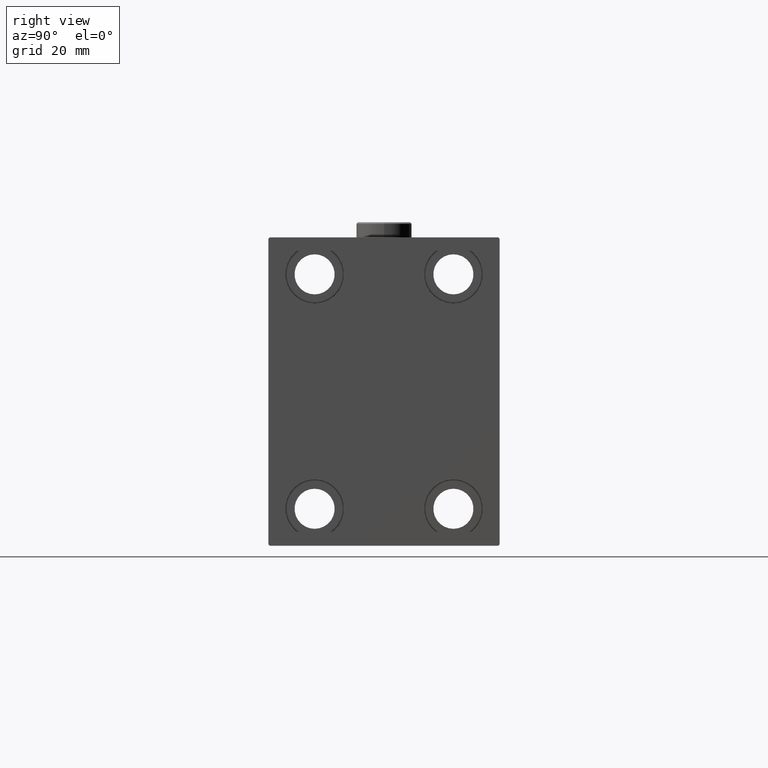
[diagram: clean part render]
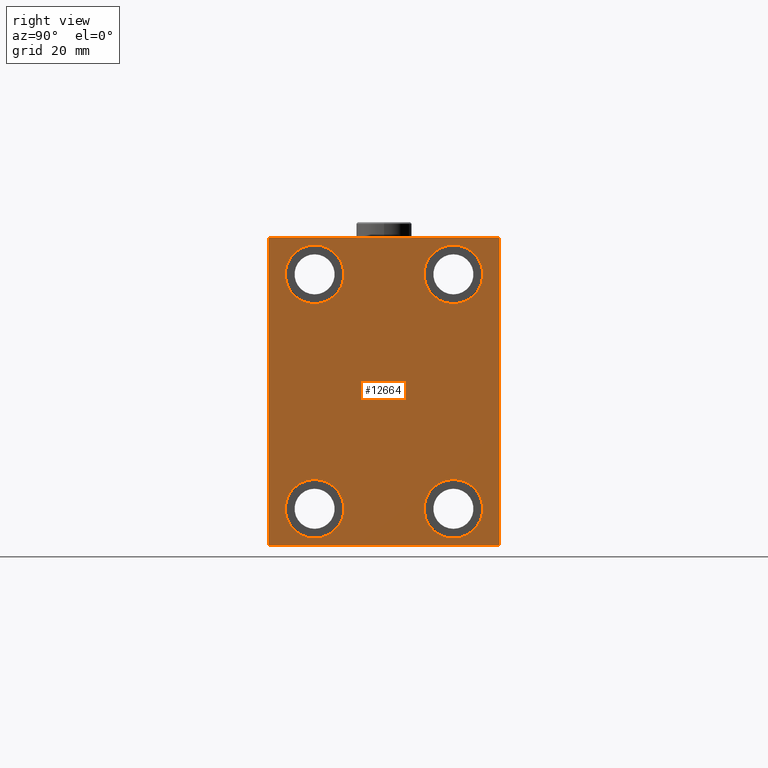
[diagram: same view with one face highlighted and labeled with its STEP entity id]
A machine part, right view. The second image highlights one B-rep face of the part: STEP entity #12664.
In plain terms, the highlighted planar face has unit normal (1, 0, 0).
Its self-contained STEP definition (entity closure, byte-faithful):
#219 = AXIS2_PLACEMENT_3D ( 'NONE', #31456, #23439, #9053 ) ;
#543 = VERTEX_POINT ( 'NONE', #39768 ) ;
#587 = VERTEX_POINT ( 'NONE', #40006 ) ;
#655 = ORIENTED_EDGE ( 'NONE', *, *, #15362, .T. ) ;
#1846 = AXIS2_PLACEMENT_3D ( 'NONE', #44374, #6631, #33176 ) ;
#2304 = CARTESIAN_POINT ( 'NONE',  ( 103.0000000000000000, 22.49999999999999645, -37.99999999999999289 ) ) ;
#2745 = EDGE_LOOP ( 'NONE', ( #3932, #655 ) ) ;
#2961 = ORIENTED_EDGE ( 'NONE', *, *, #3072, .T. ) ;
#3025 = CIRCLE ( 'NONE', #7699, 9.500000000000001776 ) ;
#3072 = EDGE_CURVE ( 'NONE', #38106, #587, #22753, .T. ) ;
#3309 = CARTESIAN_POINT ( 'NONE',  ( 103.0000000000000000, 37.49999999999999289, 50.00000000000000711 ) ) ;
#3721 = VERTEX_POINT ( 'NONE', #45018 ) ;
#3932 = ORIENTED_EDGE ( 'NONE', *, *, #27045, .T. ) ;
#4189 = CARTESIAN_POINT ( 'NONE',  ( 103.0000000000000000, 0.000000000000000000, 0.000000000000000000 ) ) ;
#4266 = LINE ( 'NONE', #33967, #12609 ) ;
#4326 = DIRECTION ( 'NONE',  ( -1.000000000000000000, -0.000000000000000000, -0.000000000000000000 ) ) ;
#4901 = DIRECTION ( 'NONE',  ( 0.000000000000000000, 0.000000000000000000, -1.000000000000000000 ) ) ;
#4987 = CIRCLE ( 'NONE', #32189, 9.500000000000001776 ) ;
#5269 = AXIS2_PLACEMENT_3D ( 'NONE', #4189, #23173, #4901 ) ;
#5785 = EDGE_CURVE ( 'NONE', #543, #20526, #35347, .T. ) ;
#5947 = CARTESIAN_POINT ( 'NONE',  ( 103.0000000000000000, -22.50000000000000711, -28.49999999999998934 ) ) ;
#6631 = DIRECTION ( 'NONE',  ( -1.000000000000000000, -0.000000000000000000, -0.000000000000000000 ) ) ;
#7001 = AXIS2_PLACEMENT_3D ( 'NONE', #15046, #4326, #33305 ) ;
#7158 = DIRECTION ( 'NONE',  ( -0.000000000000000000, 0.7071067811865573427, 0.7071067811865378028 ) ) ;
#7350 = CARTESIAN_POINT ( 'NONE',  ( 103.0000000000000000, 22.50000000000000355, 28.49999999999998934 ) ) ;
#7385 = EDGE_CURVE ( 'NONE', #32996, #543, #36673, .T. ) ;
#7699 = AXIS2_PLACEMENT_3D ( 'NONE', #2304, #35670, #17160 ) ;
#7831 = PLANE ( 'NONE',  #5269 ) ;
#7849 = LINE ( 'NONE', #31449, #30538 ) ;
#7988 = EDGE_CURVE ( 'NONE', #19955, #3721, #39423, .T. ) ;
#8151 = DIRECTION ( 'NONE',  ( 0.000000000000000000, 0.000000000000000000, -1.000000000000000000 ) ) ;
#8611 = ORIENTED_EDGE ( 'NONE', *, *, #44909, .T. ) ;
#9053 = DIRECTION ( 'NONE',  ( 0.000000000000000000, 0.000000000000000000, 1.000000000000000000 ) ) ;
#10467 = VERTEX_POINT ( 'NONE', #29848 ) ;
#10587 = ORIENTED_EDGE ( 'NONE', *, *, #28332, .T. ) ;
#10767 = DIRECTION ( 'NONE',  ( 0.000000000000000000, 0.000000000000000000, 1.000000000000000000 ) ) ;
#10853 = DIRECTION ( 'NONE',  ( 0.000000000000000000, -1.000000000000000000, -1.850371707708594316E-16 ) ) ;
#11553 = ORIENTED_EDGE ( 'NONE', *, *, #32073, .T. ) ;
#11705 = CIRCLE ( 'NONE', #7001, 9.500000000000001776 ) ;
#11887 = AXIS2_PLACEMENT_3D ( 'NONE', #25040, #47447, #14081 ) ;
#12505 = VERTEX_POINT ( 'NONE', #7350 ) ;
#12609 = VECTOR ( 'NONE', #8151, 1000.000000000000000 ) ;
#12664 = ADVANCED_FACE ( 'NONE', ( #45809, #16102, #30707, #37542, #26821 ), #7831, .T. ) ;
#13237 = VERTEX_POINT ( 'NONE', #14058 ) ;
#13928 = ORIENTED_EDGE ( 'NONE', *, *, #44499, .T. ) ;
#14045 = VERTEX_POINT ( 'NONE', #40560 ) ;
#14058 = CARTESIAN_POINT ( 'NONE',  ( 103.0000000000000000, 22.49999999999999645, -47.49999999999999289 ) ) ;
#14081 = DIRECTION ( 'NONE',  ( 0.000000000000000000, 0.000000000000000000, 1.000000000000000000 ) ) ;
#14193 = CARTESIAN_POINT ( 'NONE',  ( 103.0000000000000000, -37.50000000000000711, -50.00000000000000711 ) ) ;
#14958 = VECTOR ( 'NONE', #30079, 1000.000000000000000 ) ;
#15046 = CARTESIAN_POINT ( 'NONE',  ( 103.0000000000000000, 22.50000000000000355, 37.99999999999999289 ) ) ;
#15229 = CARTESIAN_POINT ( 'NONE',  ( 103.0000000000000000, 37.50000000000000711, -50.00000000000000000 ) ) ;
#15362 = EDGE_CURVE ( 'NONE', #39567, #13237, #3025, .T. ) ;
#16102 = FACE_BOUND ( 'NONE', #26271, .T. ) ;
#16473 = ORIENTED_EDGE ( 'NONE', *, *, #42992, .T. ) ;
#16815 = DIRECTION ( 'NONE',  ( -1.000000000000000000, -0.000000000000000000, -0.000000000000000000 ) ) ;
#16833 = CARTESIAN_POINT ( 'NONE',  ( 103.0000000000000000, -43.49999999999998579, 43.49999999999998579 ) ) ;
#17160 = DIRECTION ( 'NONE',  ( 0.000000000000000000, 0.000000000000000000, 1.000000000000000000 ) ) ;
#17603 = LINE ( 'NONE', #14193, #33635 ) ;
#18040 = AXIS2_PLACEMENT_3D ( 'NONE', #43194, #31996, #31521 ) ;
#18294 = ORIENTED_EDGE ( 'NONE', *, *, #31151, .T. ) ;
#18556 = CARTESIAN_POINT ( 'NONE',  ( 103.0000000000000000, 37.00000000000000711, -50.00000000000000000 ) ) ;
#18563 = CARTESIAN_POINT ( 'NONE',  ( 103.0000000000000000, -22.50000000000000711, -37.99999999999999289 ) ) ;
#18697 = ORIENTED_EDGE ( 'NONE', *, *, #38880, .T. ) ;
#19955 = VERTEX_POINT ( 'NONE', #20352 ) ;
#20352 = CARTESIAN_POINT ( 'NONE',  ( 103.0000000000000000, -37.50000000000000711, -49.49999999999999289 ) ) ;
#20526 = VERTEX_POINT ( 'NONE', #43756 ) ;
#21409 = VECTOR ( 'NONE', #46548, 1000.000000000000114 ) ;
#21894 = DIRECTION ( 'NONE',  ( -0.000000000000000000, 0.7071067811865474617, -0.7071067811865474617 ) ) ;
#22049 = CIRCLE ( 'NONE', #1846, 9.500000000000001776 ) ;
#22753 = LINE ( 'NONE', #48076, #37000 ) ;
#23173 = DIRECTION ( 'NONE',  ( 1.000000000000000000, 0.000000000000000000, 0.000000000000000000 ) ) ;
#23412 = CARTESIAN_POINT ( 'NONE',  ( 103.0000000000000000, -22.50000000000000711, -37.99999999999999289 ) ) ;
#23439 = DIRECTION ( 'NONE',  ( -1.000000000000000000, -0.000000000000000000, -0.000000000000000000 ) ) ;
#24898 = VERTEX_POINT ( 'NONE', #32904 ) ;
#25040 = CARTESIAN_POINT ( 'NONE',  ( 103.0000000000000000, 22.50000000000000355, 37.99999999999999289 ) ) ;
#25972 = ORIENTED_EDGE ( 'NONE', *, *, #47669, .T. ) ;
#26068 = EDGE_CURVE ( 'NONE', #20526, #19955, #4266, .T. ) ;
#26271 = EDGE_LOOP ( 'NONE', ( #18294, #10587 ) ) ;
#26821 = FACE_OUTER_BOUND ( 'NONE', #33344, .T. ) ;
#26992 = EDGE_CURVE ( 'NONE', #587, #10467, #45898, .T. ) ;
#27032 = VERTEX_POINT ( 'NONE', #5947 ) ;
#27045 = EDGE_CURVE ( 'NONE', #13237, #39567, #35153, .T. ) ;
#28027 = DIRECTION ( 'NONE',  ( -0.000000000000000000, -0.7071067811865524577, 0.7071067811865426878 ) ) ;
#28332 = EDGE_CURVE ( 'NONE', #24898, #33694, #42212, .T. ) ;
#29043 = DIRECTION ( 'NONE',  ( 0.000000000000000000, 1.000000000000000000, 9.251858538542970348E-17 ) ) ;
#29695 = AXIS2_PLACEMENT_3D ( 'NONE', #23412, #16815, #46527 ) ;
#29848 = CARTESIAN_POINT ( 'NONE',  ( 103.0000000000000000, 37.49999999999999289, 49.50000000000000000 ) ) ;
#30079 = DIRECTION ( 'NONE',  ( 0.000000000000000000, -1.387778780781445676E-16, 1.000000000000000000 ) ) ;
#30408 = VERTEX_POINT ( 'NONE', #36978 ) ;
#30538 = VECTOR ( 'NONE', #28027, 1000.000000000000000 ) ;
#30707 = FACE_BOUND ( 'NONE', #47055, .T. ) ;
#31151 = EDGE_CURVE ( 'NONE', #33694, #24898, #22049, .T. ) ;
#31449 = CARTESIAN_POINT ( 'NONE',  ( 103.0000000000000000, 43.49999999999972999, 43.50000000000033396 ) ) ;
#31456 = CARTESIAN_POINT ( 'NONE',  ( 103.0000000000000000, -22.49999999999999645, 37.99999999999999289 ) ) ;
#31521 = DIRECTION ( 'NONE',  ( 0.000000000000000000, 0.000000000000000000, 1.000000000000000000 ) ) ;
#31996 = DIRECTION ( 'NONE',  ( -1.000000000000000000, -0.000000000000000000, -0.000000000000000000 ) ) ;
#32073 = EDGE_CURVE ( 'NONE', #30408, #27032, #4987, .T. ) ;
#32189 = AXIS2_PLACEMENT_3D ( 'NONE', #18563, #36596, #10767 ) ;
#32868 = CIRCLE ( 'NONE', #11887, 9.500000000000001776 ) ;
#32904 = CARTESIAN_POINT ( 'NONE',  ( 103.0000000000000000, -22.49999999999999645, 47.49999999999999289 ) ) ;
#32996 = VERTEX_POINT ( 'NONE', #33131 ) ;
#33130 = ORIENTED_EDGE ( 'NONE', *, *, #5785, .T. ) ;
#33131 = CARTESIAN_POINT ( 'NONE',  ( 103.0000000000000000, 36.99999999999997868, 50.00000000000000711 ) ) ;
#33176 = DIRECTION ( 'NONE',  ( 0.000000000000000000, 0.000000000000000000, 1.000000000000000000 ) ) ;
#33305 = DIRECTION ( 'NONE',  ( 0.000000000000000000, 0.000000000000000000, 1.000000000000000000 ) ) ;
#33344 = EDGE_LOOP ( 'NONE', ( #34261, #33130, #45393, #47383, #25972, #2961, #44330, #13928 ) ) ;
#33635 = VECTOR ( 'NONE', #29043, 1000.000000000000000 ) ;
#33694 = VERTEX_POINT ( 'NONE', #43959 ) ;
#33967 = CARTESIAN_POINT ( 'NONE',  ( 103.0000000000000000, -37.50000000000000711, 49.99999999999999289 ) ) ;
#34261 = ORIENTED_EDGE ( 'NONE', *, *, #7385, .T. ) ;
#35153 = CIRCLE ( 'NONE', #18040, 9.500000000000001776 ) ;
#35169 = CIRCLE ( 'NONE', #29695, 9.500000000000001776 ) ;
#35347 = LINE ( 'NONE', #16833, #21409 ) ;
#35670 = DIRECTION ( 'NONE',  ( -1.000000000000000000, -0.000000000000000000, -0.000000000000000000 ) ) ;
#36240 = VECTOR ( 'NONE', #21894, 1000.000000000000114 ) ;
#36596 = DIRECTION ( 'NONE',  ( -1.000000000000000000, -0.000000000000000000, -0.000000000000000000 ) ) ;
#36673 = LINE ( 'NONE', #3309, #44022 ) ;
#36978 = CARTESIAN_POINT ( 'NONE',  ( 103.0000000000000000, -22.50000000000000711, -47.49999999999999289 ) ) ;
#37000 = VECTOR ( 'NONE', #7158, 1000.000000000000000 ) ;
#37542 = FACE_BOUND ( 'NONE', #42940, .T. ) ;
#38106 = VERTEX_POINT ( 'NONE', #18556 ) ;
#38880 = EDGE_CURVE ( 'NONE', #12505, #14045, #11705, .T. ) ;
#39423 = LINE ( 'NONE', #40376, #36240 ) ;
#39567 = VERTEX_POINT ( 'NONE', #43015 ) ;
#39768 = CARTESIAN_POINT ( 'NONE',  ( 103.0000000000000000, -36.99999999999999289, 49.99999999999999289 ) ) ;
#40006 = CARTESIAN_POINT ( 'NONE',  ( 103.0000000000000000, 37.50000000000000711, -49.50000000000001421 ) ) ;
#40376 = CARTESIAN_POINT ( 'NONE',  ( 103.0000000000000000, -43.50000000000000000, -43.50000000000000000 ) ) ;
#40560 = CARTESIAN_POINT ( 'NONE',  ( 103.0000000000000000, 22.50000000000000355, 47.49999999999999289 ) ) ;
#42212 = CIRCLE ( 'NONE', #219, 9.500000000000001776 ) ;
#42940 = EDGE_LOOP ( 'NONE', ( #11553, #16473 ) ) ;
#42992 = EDGE_CURVE ( 'NONE', #27032, #30408, #35169, .T. ) ;
#43015 = CARTESIAN_POINT ( 'NONE',  ( 103.0000000000000000, 22.49999999999999645, -28.49999999999998934 ) ) ;
#43194 = CARTESIAN_POINT ( 'NONE',  ( 103.0000000000000000, 22.49999999999999645, -37.99999999999999289 ) ) ;
#43756 = CARTESIAN_POINT ( 'NONE',  ( 103.0000000000000000, -37.50000000000000711, 49.49999999999997868 ) ) ;
#43959 = CARTESIAN_POINT ( 'NONE',  ( 103.0000000000000000, -22.49999999999999645, 28.49999999999998934 ) ) ;
#44022 = VECTOR ( 'NONE', #10853, 1000.000000000000000 ) ;
#44330 = ORIENTED_EDGE ( 'NONE', *, *, #26992, .T. ) ;
#44374 = CARTESIAN_POINT ( 'NONE',  ( 103.0000000000000000, -22.49999999999999645, 37.99999999999999289 ) ) ;
#44499 = EDGE_CURVE ( 'NONE', #10467, #32996, #7849, .T. ) ;
#44909 = EDGE_CURVE ( 'NONE', #14045, #12505, #32868, .T. ) ;
#45018 = CARTESIAN_POINT ( 'NONE',  ( 103.0000000000000000, -36.99999999999999289, -50.00000000000000711 ) ) ;
#45393 = ORIENTED_EDGE ( 'NONE', *, *, #26068, .T. ) ;
#45809 = FACE_BOUND ( 'NONE', #2745, .T. ) ;
#45898 = LINE ( 'NONE', #15229, #14958 ) ;
#46527 = DIRECTION ( 'NONE',  ( 0.000000000000000000, 0.000000000000000000, 1.000000000000000000 ) ) ;
#46548 = DIRECTION ( 'NONE',  ( 0.000000000000000000, -0.7071067811865474617, -0.7071067811865474617 ) ) ;
#47055 = EDGE_LOOP ( 'NONE', ( #18697, #8611 ) ) ;
#47383 = ORIENTED_EDGE ( 'NONE', *, *, #7988, .T. ) ;
#47447 = DIRECTION ( 'NONE',  ( -1.000000000000000000, -0.000000000000000000, -0.000000000000000000 ) ) ;
#47669 = EDGE_CURVE ( 'NONE', #3721, #38106, #17603, .T. ) ;
#48076 = CARTESIAN_POINT ( 'NONE',  ( 103.0000000000000000, 43.49999999999950262, -43.50000000000070344 ) ) ;